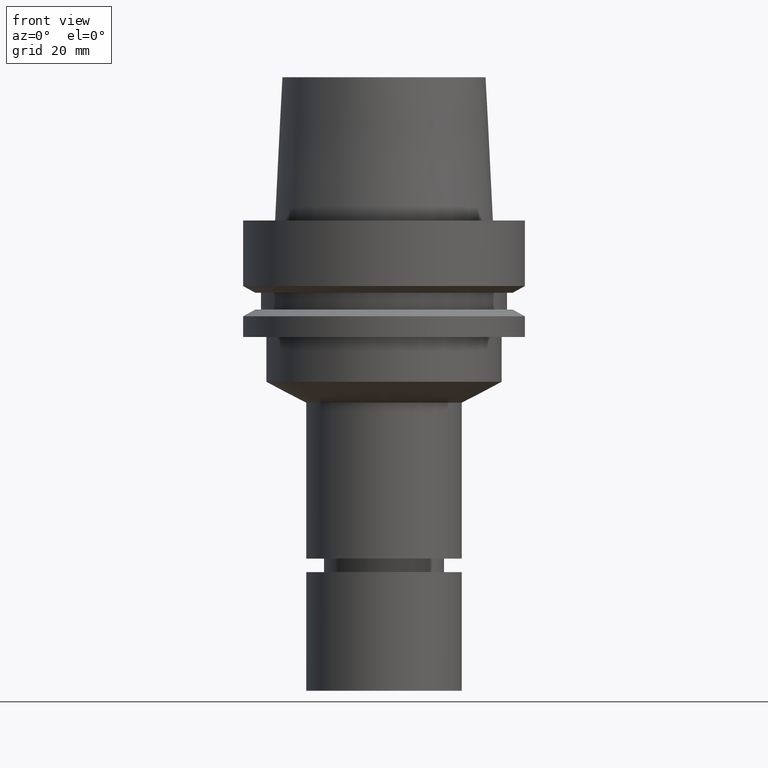
[diagram: clean part render]
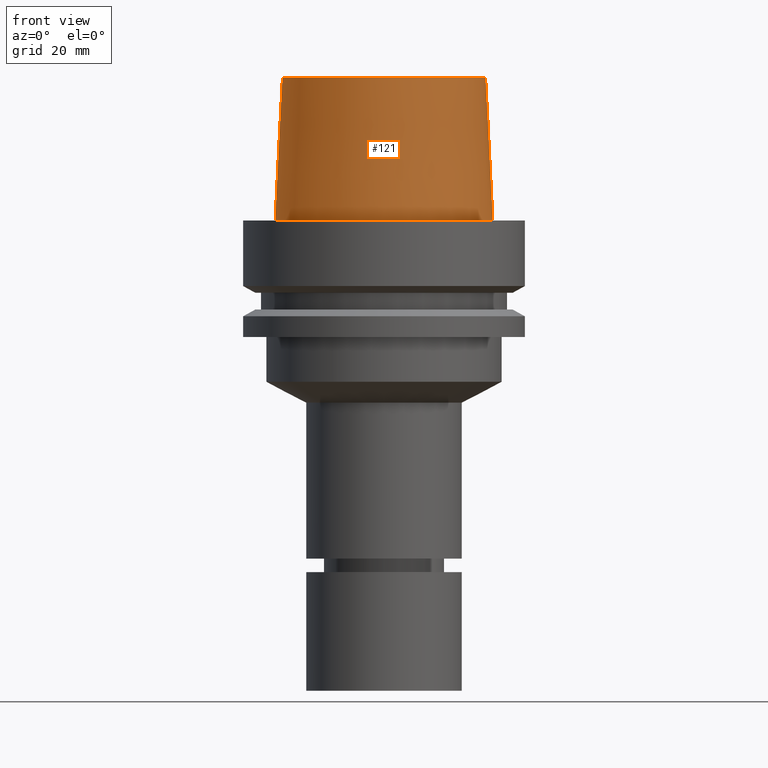
[diagram: same view with one face highlighted and labeled with its STEP entity id]
A machine part, front view. The second image highlights one B-rep face of the part: STEP entity #121.
In plain terms, the highlighted conical surface has half-angle 2.862 deg.
Its self-contained STEP definition (entity closure, byte-faithful):
#121=ADVANCED_FACE('Unnamed[1]',(#279,#280),#281,.T.);
#162=EDGE_CURVE('Unnamed[1]',#342,#342,#343,.T.);
#184=EDGE_CURVE('Unnamed[1]',#376,#376,#377,.T.);
#279=FACE_BOUND('',#486,.T.);
#280=FACE_BOUND('',#487,.T.);
#281=CONICAL_SURFACE('',#488,23.515,0.0499583957219433);
#342=VERTEX_POINT('',#564);
#343=CIRCLE('',#565,22.715);
#376=VERTEX_POINT('',#607);
#377=CIRCLE('',#608,24.315);
#486=EDGE_LOOP('',(#700));
#487=EDGE_LOOP('',(#701));
#488=AXIS2_PLACEMENT_3D('',#702,#703,#704);
#564=CARTESIAN_POINT('',(-1.95943487863576E-015,22.715,32.0));
#565=AXIS2_PLACEMENT_3D('',#770,#771,#772);
#607=CARTESIAN_POINT('',(-2.99705514225764E-031,24.315,2.97772869212679E-015));
#608=AXIS2_PLACEMENT_3D('',#808,#809,#810);
#700=ORIENTED_EDGE('',*,*,#162,.F.);
#701=ORIENTED_EDGE('',*,*,#184,.T.);
#702=CARTESIAN_POINT('',(-9.79717439317882E-016,-1.95943487863576E-015,16.0));
#703=DIRECTION('',(6.12323399573677E-017,1.22464679914735E-016,-1.0));
#704=DIRECTION('',(-1.23259516440783E-032,1.0,1.22464679914735E-016));
#770=CARTESIAN_POINT('',(-1.95943487863576E-015,-3.91886975727153E-015,32.0));
#771=DIRECTION('',(-6.12323399573676E-017,-1.22464679914735E-016,1.0));
#772=DIRECTION('',(-1.23259516440783E-032,1.0,1.22464679914735E-016));
#808=CARTESIAN_POINT('',(0.0,0.0,0.0));
#809=DIRECTION('',(-6.12323399573677E-017,-1.22464679914735E-016,1.0));
#810=DIRECTION('',(-1.23259516440783E-032,1.0,1.22464679914735E-016));